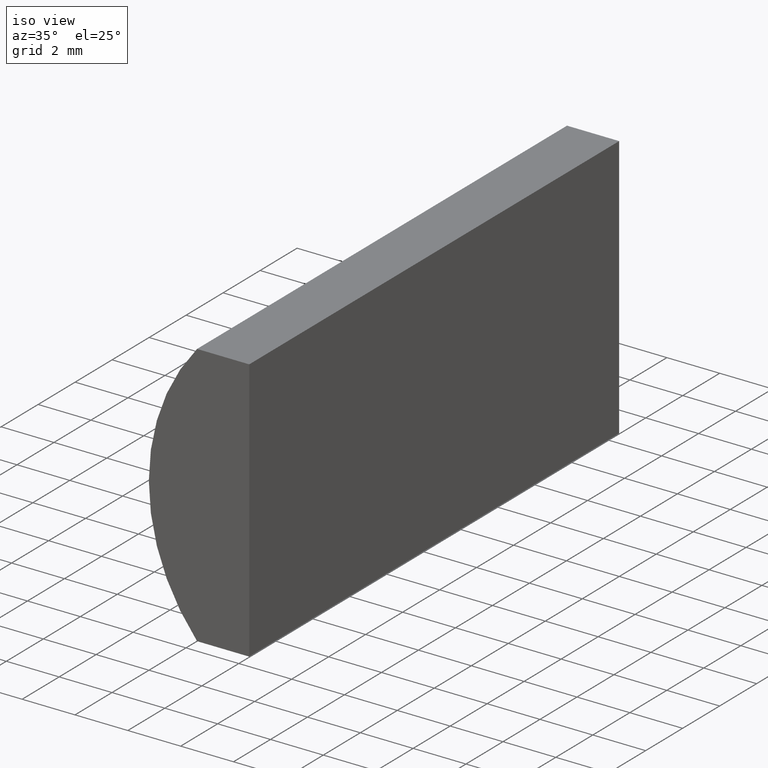
[diagram: clean part render]
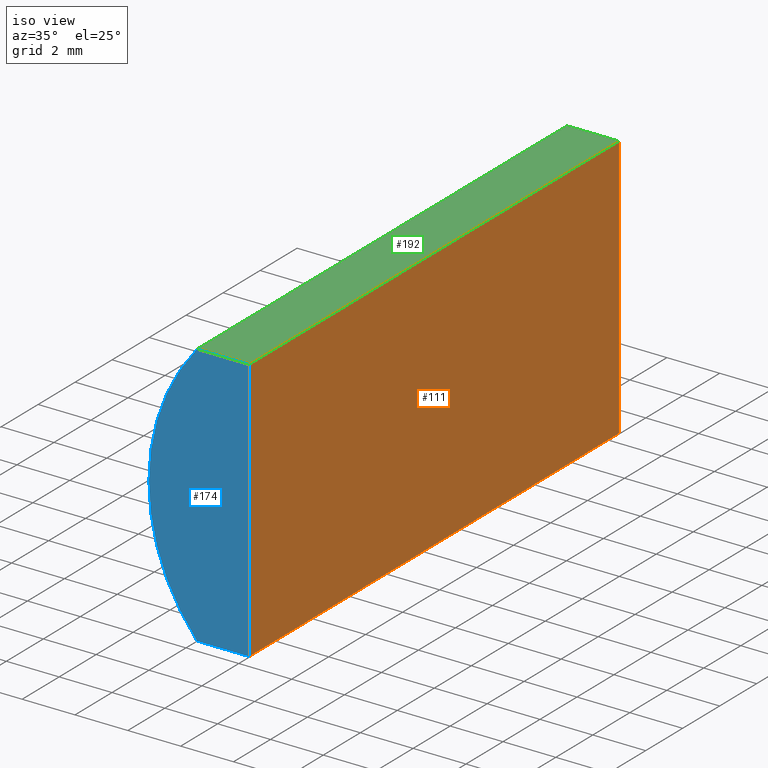
[diagram: same view with three faces highlighted in distinct colors, each labeled with its STEP entity id]
A machine part, iso view with three faces highlighted in distinct colors.
Their STEP definitions:

[orange] entity #111 — the highlighted planar face has unit normal (-1, 0, 0).
#5 = LINE ( 'NONE', #175, #91 ) ;
#6 = DIRECTION ( 'NONE',  ( -3.035766082959411900E-016, -0.0000000000000000000, -1.000000000000000000 ) ) ;
#7 = DIRECTION ( 'NONE',  ( -0.0000000000000000000, -1.000000000000000000, -0.0000000000000000000 ) ) ;
#10 = EDGE_CURVE ( 'NONE', #189, #72, #159, .T. ) ;
#20 = DIRECTION ( 'NONE',  ( -0.0000000000000000000, -1.000000000000000000, -0.0000000000000000000 ) ) ;
#23 = EDGE_CURVE ( 'NONE', #158, #72, #105, .T. ) ;
#30 = VERTEX_POINT ( 'NONE', #56 ) ;
#37 = DIRECTION ( 'NONE',  ( -3.035766082959411900E-016, -0.0000000000000000000, -1.000000000000000000 ) ) ;
#43 = CARTESIAN_POINT ( 'NONE',  ( 0.3952043348512633800, 20.00000000000000000, -5.000000000000001800 ) ) ;
#55 = CARTESIAN_POINT ( 'NONE',  ( 0.3952043348512633800, 20.00000000000000000, -5.000000000000001800 ) ) ;
#56 = CARTESIAN_POINT ( 'NONE',  ( 0.3952043348512664400, 20.00000000000000000, 5.000000000000000000 ) ) ;
#67 = LINE ( 'NONE', #43, #122 ) ;
#72 = VERTEX_POINT ( 'NONE', #204 ) ;
#73 = PLANE ( 'NONE',  #92 ) ;
#76 = CARTESIAN_POINT ( 'NONE',  ( 0.3952043348512633800, 20.00000000000000000, -5.000000000000001800 ) ) ;
#91 = VECTOR ( 'NONE', #7, 1000.000000000000000 ) ;
#92 = AXIS2_PLACEMENT_3D ( 'NONE', #55, #186, #114 ) ;
#97 = VECTOR ( 'NONE', #20, 1000.000000000000000 ) ;
#102 = EDGE_LOOP ( 'NONE', ( #199, #143, #183, #162 ) ) ;
#105 = LINE ( 'NONE', #129, #191 ) ;
#111 = ADVANCED_FACE ( 'NONE', ( #201 ), #73, .F. ) ;
#114 = DIRECTION ( 'NONE',  ( 3.035766082959411900E-016, 0.0000000000000000000, 1.000000000000000000 ) ) ;
#122 = VECTOR ( 'NONE', #37, 1000.000000000000000 ) ;
#129 = CARTESIAN_POINT ( 'NONE',  ( 0.3952043348512633800, 0.0000000000000000000, -5.000000000000001800 ) ) ;
#133 = CARTESIAN_POINT ( 'NONE',  ( 0.3952043348512633800, 20.00000000000000000, -5.000000000000001800 ) ) ;
#136 = CARTESIAN_POINT ( 'NONE',  ( 0.3952043348512664400, 0.0000000000000000000, 5.000000000000000000 ) ) ;
#137 = EDGE_CURVE ( 'NONE', #30, #189, #67, .T. ) ;
#143 = ORIENTED_EDGE ( 'NONE', *, *, #10, .F. ) ;
#158 = VERTEX_POINT ( 'NONE', #136 ) ;
#159 = LINE ( 'NONE', #76, #97 ) ;
#162 = ORIENTED_EDGE ( 'NONE', *, *, #180, .T. ) ;
#175 = CARTESIAN_POINT ( 'NONE',  ( 0.3952043348512664400, 20.00000000000000000, 5.000000000000000000 ) ) ;
#180 = EDGE_CURVE ( 'NONE', #30, #158, #5, .T. ) ;
#183 = ORIENTED_EDGE ( 'NONE', *, *, #137, .F. ) ;
#186 = DIRECTION ( 'NONE',  ( -1.000000000000000000, 0.0000000000000000000, 3.035766082959411900E-016 ) ) ;
#189 = VERTEX_POINT ( 'NONE', #133 ) ;
#191 = VECTOR ( 'NONE', #6, 1000.000000000000000 ) ;
#199 = ORIENTED_EDGE ( 'NONE', *, *, #23, .T. ) ;
#201 = FACE_OUTER_BOUND ( 'NONE', #102, .T. ) ;
#204 = CARTESIAN_POINT ( 'NONE',  ( 0.3952043348512633800, 0.0000000000000000000, -5.000000000000001800 ) ) ;

[blue] entity #174 — the highlighted planar face has unit normal (0, 1, 0).
#6 = DIRECTION ( 'NONE',  ( -3.035766082959411900E-016, -0.0000000000000000000, -1.000000000000000000 ) ) ;
#9 = CARTESIAN_POINT ( 'NONE',  ( -1.579237509164056700, 0.0000000000000000000, -5.000000000000000000 ) ) ;
#14 = DIRECTION ( 'NONE',  ( 1.000000000000000000, 0.0000000000000000000, 0.0000000000000000000 ) ) ;
#16 = EDGE_CURVE ( 'NONE', #51, #130, #93, .T. ) ;
#21 = DIRECTION ( 'NONE',  ( 0.0000000000000000000, -0.0000000000000000000, 1.000000000000000000 ) ) ;
#23 = EDGE_CURVE ( 'NONE', #158, #72, #105, .T. ) ;
#26 = ORIENTED_EDGE ( 'NONE', *, *, #110, .F. ) ;
#40 = VECTOR ( 'NONE', #142, 1000.000000000000000 ) ;
#41 = ORIENTED_EDGE ( 'NONE', *, *, #108, .F. ) ;
#44 = CARTESIAN_POINT ( 'NONE',  ( -1.579237509164056900, 0.0000000000000000000, 5.000000000000000000 ) ) ;
#45 = DIRECTION ( 'NONE',  ( 0.0000000000000000000, 0.0000000000000000000, 1.000000000000000000 ) ) ;
#51 = VERTEX_POINT ( 'NONE', #152 ) ;
#58 = ORIENTED_EDGE ( 'NONE', *, *, #16, .F. ) ;
#72 = VERTEX_POINT ( 'NONE', #204 ) ;
#84 = CARTESIAN_POINT ( 'NONE',  ( 4.355204334851265500, 0.0000000000000000000, 4.286263797015675000E-017 ) ) ;
#89 = AXIS2_PLACEMENT_3D ( 'NONE', #84, #144, #21 ) ;
#93 = CIRCLE ( 'NONE', #194, 7.759999999999998000 ) ;
#105 = LINE ( 'NONE', #129, #191 ) ;
#108 = EDGE_CURVE ( 'NONE', #130, #158, #160, .T. ) ;
#110 = EDGE_CURVE ( 'NONE', #72, #51, #182, .T. ) ;
#126 = DIRECTION ( 'NONE',  ( 0.0000000000000000000, 1.000000000000000000, 0.0000000000000000000 ) ) ;
#129 = CARTESIAN_POINT ( 'NONE',  ( 0.3952043348512633800, 0.0000000000000000000, -5.000000000000001800 ) ) ;
#130 = VERTEX_POINT ( 'NONE', #172 ) ;
#136 = CARTESIAN_POINT ( 'NONE',  ( 0.3952043348512664400, 0.0000000000000000000, 5.000000000000000000 ) ) ;
#142 = DIRECTION ( 'NONE',  ( -1.000000000000000000, -0.0000000000000000000, 8.785892991656771100E-016 ) ) ;
#144 = DIRECTION ( 'NONE',  ( 0.0000000000000000000, 1.000000000000000000, 0.0000000000000000000 ) ) ;
#149 = FACE_OUTER_BOUND ( 'NONE', #187, .T. ) ;
#152 = CARTESIAN_POINT ( 'NONE',  ( -1.579237509164056700, 0.0000000000000000000, -5.000000000000000000 ) ) ;
#157 = PLANE ( 'NONE',  #89 ) ;
#158 = VERTEX_POINT ( 'NONE', #136 ) ;
#160 = LINE ( 'NONE', #44, #171 ) ;
#168 = ORIENTED_EDGE ( 'NONE', *, *, #23, .F. ) ;
#171 = VECTOR ( 'NONE', #14, 1000.000000000000000 ) ;
#172 = CARTESIAN_POINT ( 'NONE',  ( -1.579237509164056900, 0.0000000000000000000, 5.000000000000000000 ) ) ;
#174 = ADVANCED_FACE ( 'NONE', ( #149 ), #157, .F. ) ;
#182 = LINE ( 'NONE', #9, #40 ) ;
#187 = EDGE_LOOP ( 'NONE', ( #58, #26, #168, #41 ) ) ;
#191 = VECTOR ( 'NONE', #6, 1000.000000000000000 ) ;
#194 = AXIS2_PLACEMENT_3D ( 'NONE', #195, #126, #45 ) ;
#195 = CARTESIAN_POINT ( 'NONE',  ( 4.355204334851265500, 0.0000000000000000000, 4.286263797015675000E-017 ) ) ;
#204 = CARTESIAN_POINT ( 'NONE',  ( 0.3952043348512633800, 0.0000000000000000000, -5.000000000000001800 ) ) ;

[green] entity #192 — the highlighted planar face has unit normal (0, 0, -1).
#5 = LINE ( 'NONE', #175, #91 ) ;
#7 = DIRECTION ( 'NONE',  ( -0.0000000000000000000, -1.000000000000000000, -0.0000000000000000000 ) ) ;
#14 = DIRECTION ( 'NONE',  ( 1.000000000000000000, 0.0000000000000000000, 0.0000000000000000000 ) ) ;
#30 = VERTEX_POINT ( 'NONE', #56 ) ;
#32 = EDGE_LOOP ( 'NONE', ( #154, #53, #134, #107 ) ) ;
#35 = CARTESIAN_POINT ( 'NONE',  ( -1.579237509164056900, 20.00000000000000000, 5.000000000000000000 ) ) ;
#44 = CARTESIAN_POINT ( 'NONE',  ( -1.579237509164056900, 0.0000000000000000000, 5.000000000000000000 ) ) ;
#46 = CARTESIAN_POINT ( 'NONE',  ( -1.579237509164056900, 20.00000000000000000, 5.000000000000000000 ) ) ;
#53 = ORIENTED_EDGE ( 'NONE', *, *, #180, .F. ) ;
#56 = CARTESIAN_POINT ( 'NONE',  ( 0.3952043348512664400, 20.00000000000000000, 5.000000000000000000 ) ) ;
#59 = DIRECTION ( 'NONE',  ( -1.000000000000000000, 0.0000000000000000000, -0.0000000000000000000 ) ) ;
#60 = VERTEX_POINT ( 'NONE', #103 ) ;
#74 = FACE_OUTER_BOUND ( 'NONE', #32, .T. ) ;
#78 = AXIS2_PLACEMENT_3D ( 'NONE', #169, #200, #59 ) ;
#81 = EDGE_CURVE ( 'NONE', #60, #130, #161, .T. ) ;
#91 = VECTOR ( 'NONE', #7, 1000.000000000000000 ) ;
#103 = CARTESIAN_POINT ( 'NONE',  ( -1.579237509164056900, 20.00000000000000000, 5.000000000000000000 ) ) ;
#107 = ORIENTED_EDGE ( 'NONE', *, *, #81, .T. ) ;
#108 = EDGE_CURVE ( 'NONE', #130, #158, #160, .T. ) ;
#120 = DIRECTION ( 'NONE',  ( 1.000000000000000000, 0.0000000000000000000, 0.0000000000000000000 ) ) ;
#130 = VERTEX_POINT ( 'NONE', #172 ) ;
#134 = ORIENTED_EDGE ( 'NONE', *, *, #141, .F. ) ;
#136 = CARTESIAN_POINT ( 'NONE',  ( 0.3952043348512664400, 0.0000000000000000000, 5.000000000000000000 ) ) ;
#141 = EDGE_CURVE ( 'NONE', #60, #30, #181, .T. ) ;
#146 = PLANE ( 'NONE',  #78 ) ;
#147 = DIRECTION ( 'NONE',  ( -0.0000000000000000000, -1.000000000000000000, -0.0000000000000000000 ) ) ;
#154 = ORIENTED_EDGE ( 'NONE', *, *, #108, .T. ) ;
#156 = VECTOR ( 'NONE', #147, 1000.000000000000000 ) ;
#158 = VERTEX_POINT ( 'NONE', #136 ) ;
#160 = LINE ( 'NONE', #44, #171 ) ;
#161 = LINE ( 'NONE', #46, #156 ) ;
#169 = CARTESIAN_POINT ( 'NONE',  ( -1.579237509164056900, 20.00000000000000000, 5.000000000000000000 ) ) ;
#171 = VECTOR ( 'NONE', #14, 1000.000000000000000 ) ;
#172 = CARTESIAN_POINT ( 'NONE',  ( -1.579237509164056900, 0.0000000000000000000, 5.000000000000000000 ) ) ;
#173 = VECTOR ( 'NONE', #120, 1000.000000000000000 ) ;
#175 = CARTESIAN_POINT ( 'NONE',  ( 0.3952043348512664400, 20.00000000000000000, 5.000000000000000000 ) ) ;
#180 = EDGE_CURVE ( 'NONE', #30, #158, #5, .T. ) ;
#181 = LINE ( 'NONE', #35, #173 ) ;
#192 = ADVANCED_FACE ( 'NONE', ( #74 ), #146, .F. ) ;
#200 = DIRECTION ( 'NONE',  ( 0.0000000000000000000, 0.0000000000000000000, -1.000000000000000000 ) ) ;